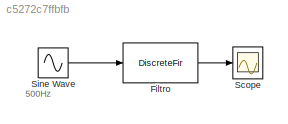
MODEL slx_c5272c7ffbfb
KIND model
CONFIG AbsTol = auto
CONFIG EnableMultiTasking = off
CONFIG FixedStep = auto
CONFIG MaxStep = auto
CONFIG MinStep = auto
CONFIG RelTol = 1e-3
CONFIG SampleTimeConstraint = Unconstrained
CONFIG SolverName = VariableStepAuto
CONFIG StartTime = 0.0
CONFIG StopTime = 10.0
BLOCK [DiscreteFir] Filtro
  Coefficients = [0.000192222707916954661 0.000309219800150138484 0.000422005901286501197 0.000529581846294212332 0.000631004652221989638 0.000725398396577585803 0.000811964437746644577 0.000889990851918536483 0.000958860968432039169 0.00101806089436112779 0.00106718592944590176 0.00110594578403453835 0.0011341685254226898 0.00115180319172456273 0.00115892102704004537 0.00115571530703697969 0.00114249973997937351 ...<+11787ch>
  InputPortMap = u0
  InputProcessing = Columns as channels (frame based)
  OutputPortMap = o0
  Ports = [1, 1]
  Tag = BlockMethodSubSystem
BLOCK [Scope] Scope
  Floating = off
  NumInputPorts = 1
  Ports = [1]
  ScopeSpecificationString = Simulink.scopes.TimeScopeBlockCfg('CurrentConfiguration', extmgr.ConfigurationSet(extmgr.Configuration('Core','General UI',true),extmgr.Configuration('Core','Source UI',true),extmgr.Configuration('Sources','WiredSimulink',true),extmgr.Configuration('Visuals','Time Domain',true),extmgr.Configuration('Tools','Plot Navigation',true),extmgr.Configuration('Tools','Measurements',true)),'Version','2018b'...<+1ch>
BLOCK [Sin] Sine Wave
  Frequency = 600/0.159
  Ports = [0, 1]
  SampleTime = 1/44100
ANNOTATION (root): 500Hz
LINE Filtro:1 -> Scope:1
LINE Sine Wave:1 -> Filtro:1
